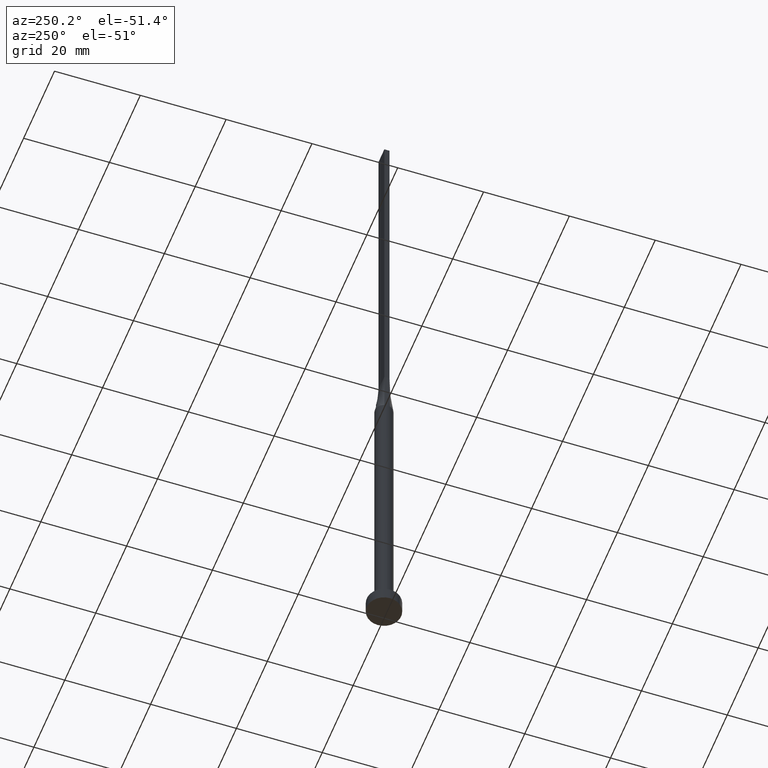
[diagram: clean part render]
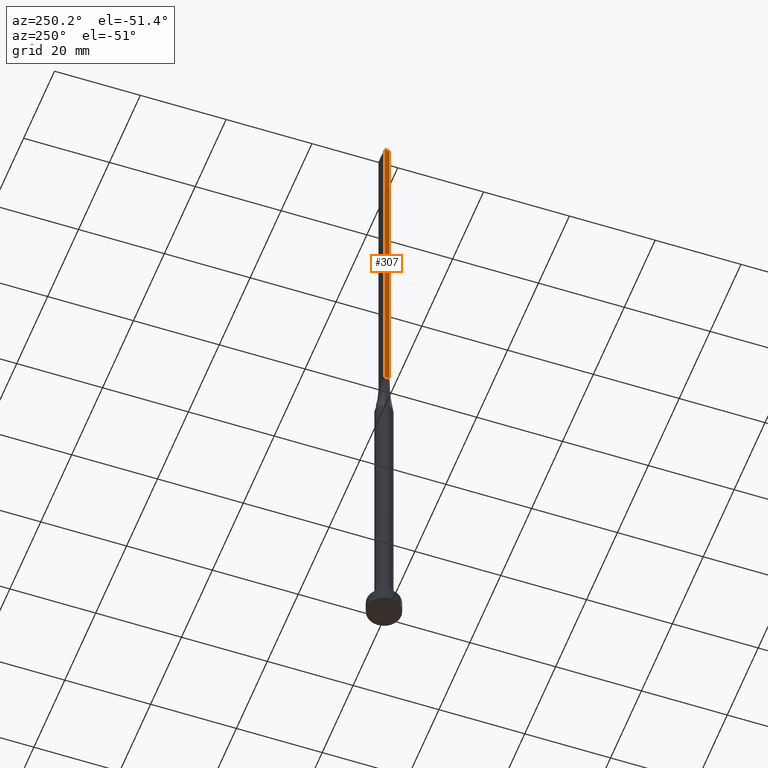
[diagram: same view with one face highlighted and labeled with its STEP entity id]
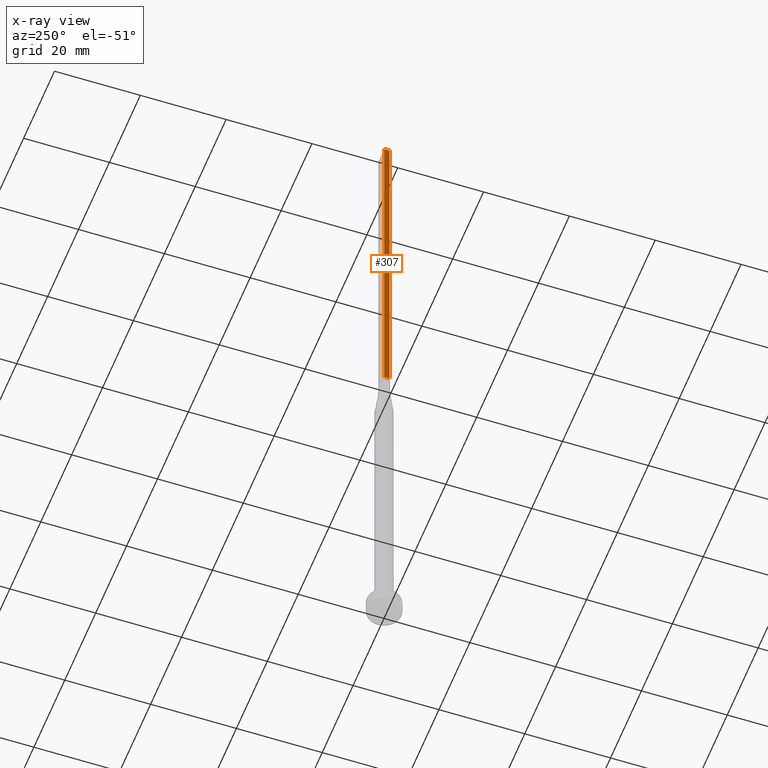
[diagram: x-ray of the same camera — body ghosted, the highlighted face saturated]
A machine part, auxiliary view. The second image highlights one B-rep face of the part: STEP entity #307.
The next image is the same camera in x-ray: the body ghosted, the highlighted face saturated — about 0% of this face is hidden behind the body in this view.
In plain terms, the highlighted planar face has unit normal (1, -0, 0).
Its self-contained STEP definition (entity closure, byte-faithful):
#1 = EDGE_CURVE ( 'NONE', #192, #41, #16, .T. ) ;
#8 = DIRECTION ( 'NONE',  ( -1.807003620809174632E-16, -1.000000000000000000, 0.000000000000000000 ) ) ;
#16 = LINE ( 'NONE', #453, #574 ) ;
#23 = ORIENTED_EDGE ( 'NONE', *, *, #508, .F. ) ;
#41 = VERTEX_POINT ( 'NONE', #59 ) ;
#47 = EDGE_CURVE ( 'NONE', #346, #572, #428, .T. ) ;
#59 = CARTESIAN_POINT ( 'NONE',  ( -1.899999999999999911, -0.5999999999999995337, 160.0000000000000000 ) ) ;
#98 = FACE_OUTER_BOUND ( 'NONE', #423, .T. ) ;
#109 = CARTESIAN_POINT ( 'NONE',  ( -1.899999999999999689, 0.6000000000000001998, 80.00000000000000000 ) ) ;
#172 = CARTESIAN_POINT ( 'NONE',  ( -1.899999999999999911, -0.5999999999999995337, 80.00000000000000000 ) ) ;
#192 = VERTEX_POINT ( 'NONE', #297 ) ;
#205 = DIRECTION ( 'NONE',  ( 1.807003620809174632E-16, 1.000000000000000000, 0.000000000000000000 ) ) ;
#209 = ORIENTED_EDGE ( 'NONE', *, *, #47, .T. ) ;
#258 = LINE ( 'NONE', #409, #526 ) ;
#272 = CARTESIAN_POINT ( 'NONE',  ( -1.899999999999999689, 0.6000000000000001998, 80.00000000000000000 ) ) ;
#297 = CARTESIAN_POINT ( 'NONE',  ( -1.899999999999999689, 0.6000000000000001998, 160.0000000000000000 ) ) ;
#307 = ADVANCED_FACE ( 'NONE', ( #98 ), #376, .F. ) ;
#318 = VECTOR ( 'NONE', #492, 1000.000000000000000 ) ;
#323 = CARTESIAN_POINT ( 'NONE',  ( -1.899999999999999689, 0.6000000000000001998, 160.0000000000000000 ) ) ;
#346 = VERTEX_POINT ( 'NONE', #109 ) ;
#348 = LINE ( 'NONE', #447, #318 ) ;
#350 = VECTOR ( 'NONE', #8, 1000.000000000000000 ) ;
#360 = DIRECTION ( 'NONE',  ( -1.807003620809174632E-16, -1.000000000000000000, 0.000000000000000000 ) ) ;
#376 = PLANE ( 'NONE',  #475 ) ;
#379 = ORIENTED_EDGE ( 'NONE', *, *, #1, .F. ) ;
#409 = CARTESIAN_POINT ( 'NONE',  ( -1.899999999999999689, 0.6000000000000001998, 160.0000000000000000 ) ) ;
#423 = EDGE_LOOP ( 'NONE', ( #209, #23, #379, #448 ) ) ;
#428 = LINE ( 'NONE', #272, #350 ) ;
#447 = CARTESIAN_POINT ( 'NONE',  ( -1.899999999999999911, -0.5999999999999995337, 160.0000000000000000 ) ) ;
#448 = ORIENTED_EDGE ( 'NONE', *, *, #569, .T. ) ;
#453 = CARTESIAN_POINT ( 'NONE',  ( -1.899999999999999689, 0.6000000000000001998, 160.0000000000000000 ) ) ;
#475 = AXIS2_PLACEMENT_3D ( 'NONE', #323, #519, #205 ) ;
#492 = DIRECTION ( 'NONE',  ( -0.000000000000000000, -0.000000000000000000, -1.000000000000000000 ) ) ;
#508 = EDGE_CURVE ( 'NONE', #41, #572, #348, .T. ) ;
#519 = DIRECTION ( 'NONE',  ( 1.000000000000000000, -1.807003620809174632E-16, 0.000000000000000000 ) ) ;
#526 = VECTOR ( 'NONE', #581, 1000.000000000000000 ) ;
#569 = EDGE_CURVE ( 'NONE', #192, #346, #258, .T. ) ;
#572 = VERTEX_POINT ( 'NONE', #172 ) ;
#574 = VECTOR ( 'NONE', #360, 1000.000000000000000 ) ;
#581 = DIRECTION ( 'NONE',  ( -0.000000000000000000, -0.000000000000000000, -1.000000000000000000 ) ) ;